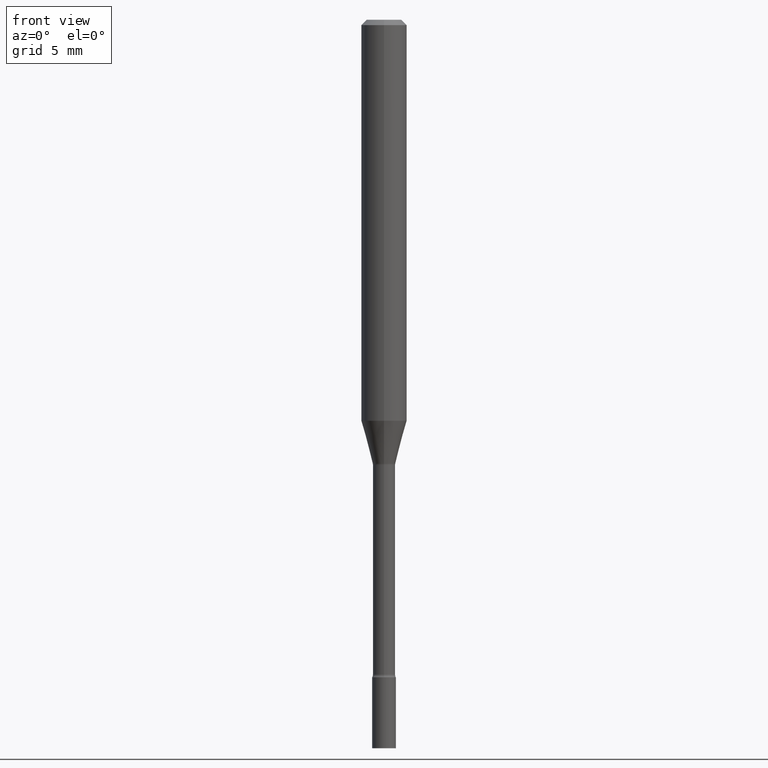
[diagram: clean part render]
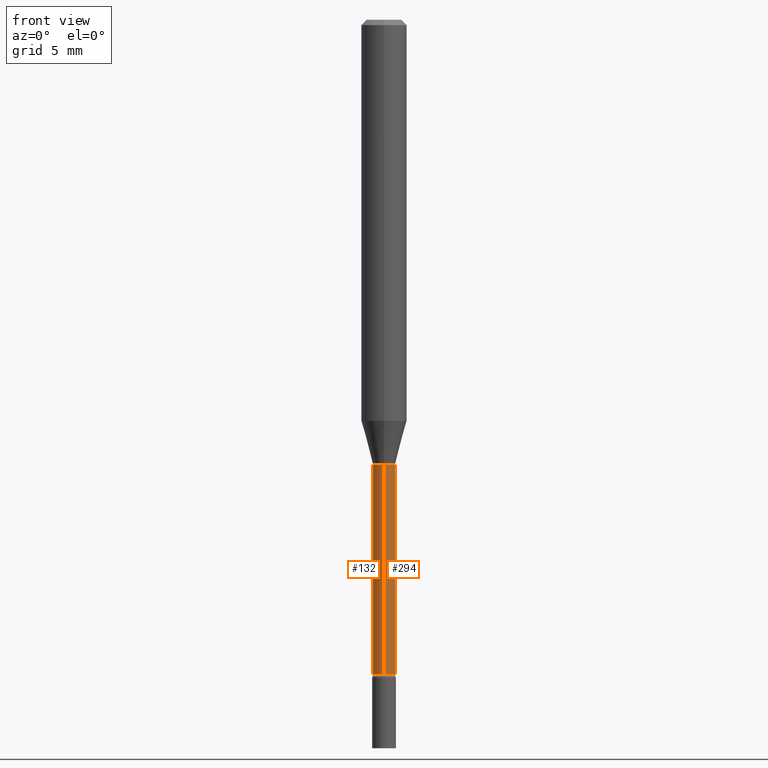
[diagram: same view with one multi-face feature highlighted, each face labeled with its STEP entity id]
A machine part, front view. The highlighted faces form ONE feature: a constant-radius fillet chain: 2 tangent blend faces with common blend radius 0.776 mm. The faces share edges in the B-rep.
Their STEP definitions:
[1] entity #132 (Cylinder):
#33 = CARTESIAN_POINT ( 'NONE',  ( -2.133295098033156001E-16, -0.03055000000000002505, 1.066662759089002504E-16 ) ) ;
#41 = DIRECTION ( 'NONE',  ( -2.445434039779886837E-29, 3.491531126314244194E-15, 1.000000000000000000 ) ) ;
#46 = CARTESIAN_POINT ( 'NONE',  ( 2.170708057747107601E-16, 0.03055000000000002505, -1.066662759089002504E-16 ) ) ;
#52 = EDGE_CURVE ( 'NONE', #94, #376, #127, .T. ) ;
#60 = AXIS2_PLACEMENT_3D ( 'NONE', #80, #325, #492 ) ;
#74 = EDGE_CURVE ( 'NONE', #376, #133, #518, .T. ) ;
#79 = AXIS2_PLACEMENT_3D ( 'NONE', #196, #41, #240 ) ;
#80 = CARTESIAN_POINT ( 'NONE',  ( 0.000000000000000000, 0.000000000000000000, 0.000000000000000000 ) ) ;
#82 = VECTOR ( 'NONE', #211, 39.37007874015748143 ) ;
#94 = VERTEX_POINT ( 'NONE', #159 ) ;
#118 = CARTESIAN_POINT ( 'NONE',  ( -2.133295098032855247E-16, -0.03055000000000426819, -1.221974787463810719 ) ) ;
#119 = CYLINDRICAL_SURFACE ( 'NONE', #60, 0.03055000000000002505 ) ;
#127 = CIRCLE ( 'NONE', #79, 0.03055000000000005628 ) ;
#132 = ADVANCED_FACE ( 'NONE', ( #163 ), #119, .T. ) ;
#133 = VERTEX_POINT ( 'NONE', #118 ) ;
#156 = ORIENTED_EDGE ( 'NONE', *, *, #52, .T. ) ;
#159 = CARTESIAN_POINT ( 'NONE',  ( 2.239985974484158404E-16, 0.03054999999999378005, -1.797604224178627419 ) ) ;
#163 = FACE_OUTER_BOUND ( 'NONE', #273, .T. ) ;
#175 = CARTESIAN_POINT ( 'NONE',  ( -2.133295098032718676E-16, -0.03055000000000632904, -1.797604224178627419 ) ) ;
#196 = CARTESIAN_POINT ( 'NONE',  ( 4.395922559858529610E-29, -6.276391101513645807E-15, -1.797604224178627419 ) ) ;
#211 = DIRECTION ( 'NONE',  ( -2.445434039779886837E-29, 3.491531126314244194E-15, 1.000000000000000000 ) ) ;
#227 = ORIENTED_EDGE ( 'NONE', *, *, #451, .F. ) ;
#240 = DIRECTION ( 'NONE',  ( -6.982962677686265133E-15, -1.000000000000000000, 0.000000000000000000 ) ) ;
#273 = EDGE_LOOP ( 'NONE', ( #296, #156, #282, #227 ) ) ;
#282 = ORIENTED_EDGE ( 'NONE', *, *, #74, .T. ) ;
#287 = AXIS2_PLACEMENT_3D ( 'NONE', #309, #348, #513 ) ;
#291 = VECTOR ( 'NONE', #449, 39.37007874015748143 ) ;
#296 = ORIENTED_EDGE ( 'NONE', *, *, #364, .F. ) ;
#309 = CARTESIAN_POINT ( 'NONE',  ( 2.988258741016795853E-29, -4.266563006001128291E-15, -1.221974787463810941 ) ) ;
#325 = DIRECTION ( 'NONE',  ( -2.445434039779886837E-29, 3.491531126314244194E-15, 1.000000000000000000 ) ) ;
#348 = DIRECTION ( 'NONE',  ( -2.445434039779886837E-29, 3.491531126314244194E-15, 1.000000000000000000 ) ) ;
#364 = EDGE_CURVE ( 'NONE', #94, #382, #375, .T. ) ;
#375 = LINE ( 'NONE', #46, #82 ) ;
#376 = VERTEX_POINT ( 'NONE', #175 ) ;
#382 = VERTEX_POINT ( 'NONE', #427 ) ;
#427 = CARTESIAN_POINT ( 'NONE',  ( 2.170708057747546898E-16, 0.03054999999999572988, -1.221974787463810941 ) ) ;
#449 = DIRECTION ( 'NONE',  ( -2.445434039779886837E-29, 3.491531126314244194E-15, 1.000000000000000000 ) ) ;
#451 = EDGE_CURVE ( 'NONE', #382, #133, #494, .T. ) ;
#492 = DIRECTION ( 'NONE',  ( -6.982962677686265922E-15, -1.000000000000000000, 3.491531126314244194E-15 ) ) ;
#494 = CIRCLE ( 'NONE', #287, 0.03055000000000000077 ) ;
#513 = DIRECTION ( 'NONE',  ( -6.982962677686265133E-15, -1.000000000000000000, 4.471109645931690737E-15 ) ) ;
#518 = LINE ( 'NONE', #33, #291 ) ;
[2] entity #294 (Cylinder):
#25 = CARTESIAN_POINT ( 'NONE',  ( 0.000000000000000000, 0.000000000000000000, 0.000000000000000000 ) ) ;
#33 = CARTESIAN_POINT ( 'NONE',  ( -2.133295098033156001E-16, -0.03055000000000002505, 1.066662759089002504E-16 ) ) ;
#42 = DIRECTION ( 'NONE',  ( -2.445434039779886837E-29, 3.491531126314244194E-15, 1.000000000000000000 ) ) ;
#46 = CARTESIAN_POINT ( 'NONE',  ( 2.170708057747107601E-16, 0.03055000000000002505, -1.066662759089002504E-16 ) ) ;
#58 = CYLINDRICAL_SURFACE ( 'NONE', #165, 0.03055000000000002505 ) ;
#74 = EDGE_CURVE ( 'NONE', #376, #133, #518, .T. ) ;
#78 = CARTESIAN_POINT ( 'NONE',  ( 2.988258741016795853E-29, -4.266563006001128291E-15, -1.221974787463810941 ) ) ;
#82 = VECTOR ( 'NONE', #211, 39.37007874015748143 ) ;
#90 = DIRECTION ( 'NONE',  ( -6.982962677686265922E-15, -1.000000000000000000, 3.491531126314244194E-15 ) ) ;
#92 = CIRCLE ( 'NONE', #113, 0.03055000000000005628 ) ;
#94 = VERTEX_POINT ( 'NONE', #159 ) ;
#113 = AXIS2_PLACEMENT_3D ( 'NONE', #504, #302, #472 ) ;
#118 = CARTESIAN_POINT ( 'NONE',  ( -2.133295098032855247E-16, -0.03055000000000426819, -1.221974787463810719 ) ) ;
#130 = DIRECTION ( 'NONE',  ( -2.445434039779886837E-29, 3.491531126314244194E-15, 1.000000000000000000 ) ) ;
#133 = VERTEX_POINT ( 'NONE', #118 ) ;
#146 = EDGE_CURVE ( 'NONE', #133, #382, #248, .T. ) ;
#159 = CARTESIAN_POINT ( 'NONE',  ( 2.239985974484158404E-16, 0.03054999999999378005, -1.797604224178627419 ) ) ;
#161 = ORIENTED_EDGE ( 'NONE', *, *, #377, .T. ) ;
#165 = AXIS2_PLACEMENT_3D ( 'NONE', #25, #130, #90 ) ;
#171 = AXIS2_PLACEMENT_3D ( 'NONE', #78, #42, #514 ) ;
#175 = CARTESIAN_POINT ( 'NONE',  ( -2.133295098032718676E-16, -0.03055000000000632904, -1.797604224178627419 ) ) ;
#204 = EDGE_LOOP ( 'NONE', ( #161, #501, #244, #473 ) ) ;
#211 = DIRECTION ( 'NONE',  ( -2.445434039779886837E-29, 3.491531126314244194E-15, 1.000000000000000000 ) ) ;
#244 = ORIENTED_EDGE ( 'NONE', *, *, #146, .F. ) ;
#248 = CIRCLE ( 'NONE', #171, 0.03055000000000000077 ) ;
#291 = VECTOR ( 'NONE', #449, 39.37007874015748143 ) ;
#294 = ADVANCED_FACE ( 'NONE', ( #335 ), #58, .T. ) ;
#302 = DIRECTION ( 'NONE',  ( -2.445434039779886837E-29, 3.491531126314244194E-15, 1.000000000000000000 ) ) ;
#335 = FACE_OUTER_BOUND ( 'NONE', #204, .T. ) ;
#364 = EDGE_CURVE ( 'NONE', #94, #382, #375, .T. ) ;
#375 = LINE ( 'NONE', #46, #82 ) ;
#376 = VERTEX_POINT ( 'NONE', #175 ) ;
#377 = EDGE_CURVE ( 'NONE', #376, #94, #92, .T. ) ;
#382 = VERTEX_POINT ( 'NONE', #427 ) ;
#427 = CARTESIAN_POINT ( 'NONE',  ( 2.170708057747546898E-16, 0.03054999999999572988, -1.221974787463810941 ) ) ;
#449 = DIRECTION ( 'NONE',  ( -2.445434039779886837E-29, 3.491531126314244194E-15, 1.000000000000000000 ) ) ;
#472 = DIRECTION ( 'NONE',  ( -6.982962677686265133E-15, -1.000000000000000000, 0.000000000000000000 ) ) ;
#473 = ORIENTED_EDGE ( 'NONE', *, *, #74, .F. ) ;
#501 = ORIENTED_EDGE ( 'NONE', *, *, #364, .T. ) ;
#504 = CARTESIAN_POINT ( 'NONE',  ( 4.395922559858529610E-29, -6.276391101513645807E-15, -1.797604224178627419 ) ) ;
#514 = DIRECTION ( 'NONE',  ( -6.982962677686265133E-15, -1.000000000000000000, 4.471109645931690737E-15 ) ) ;
#518 = LINE ( 'NONE', #33, #291 ) ;